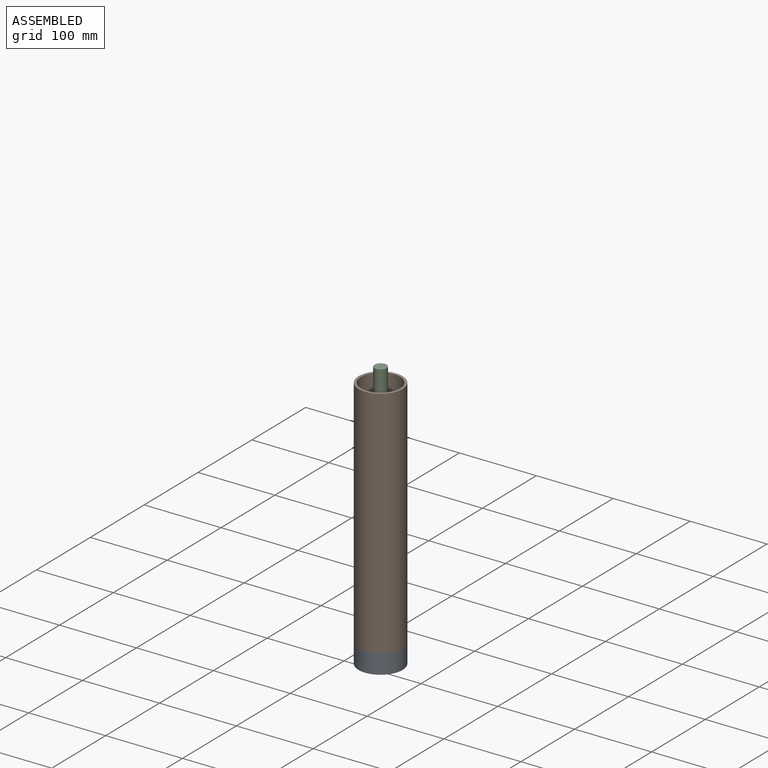
[diagram: assembled view]
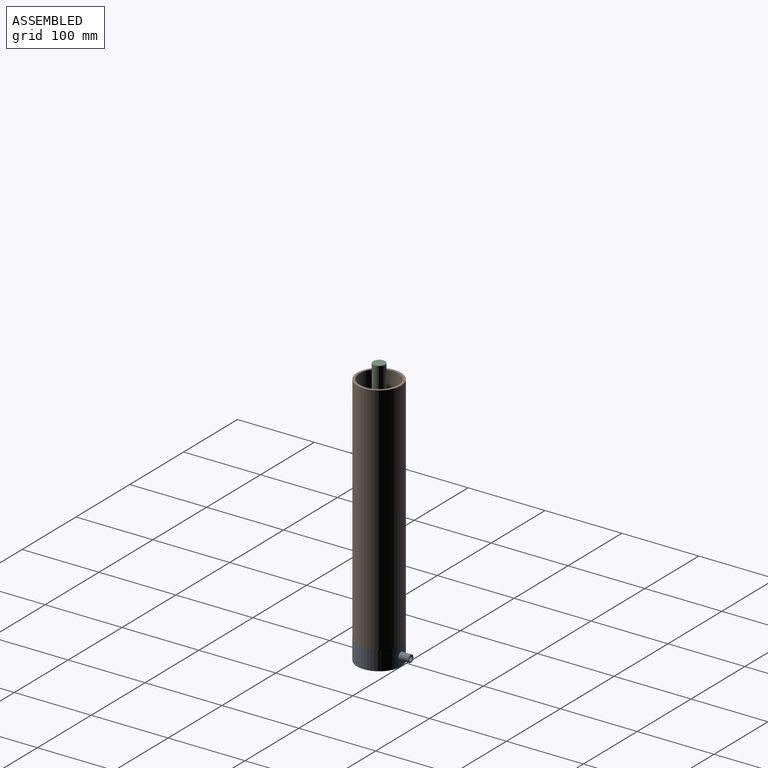
[diagram: assembled view, second angle]
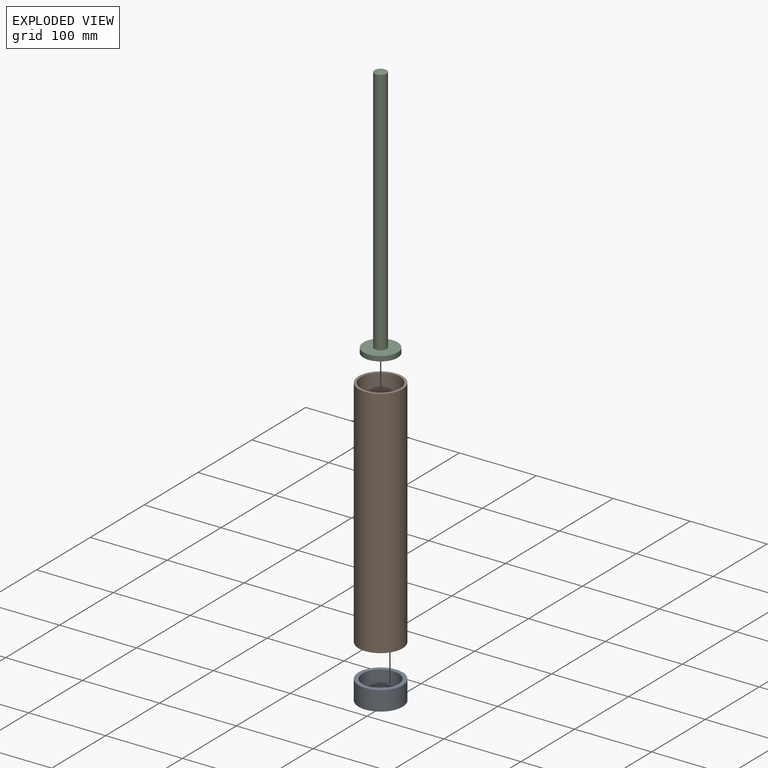
[diagram: exploded view]
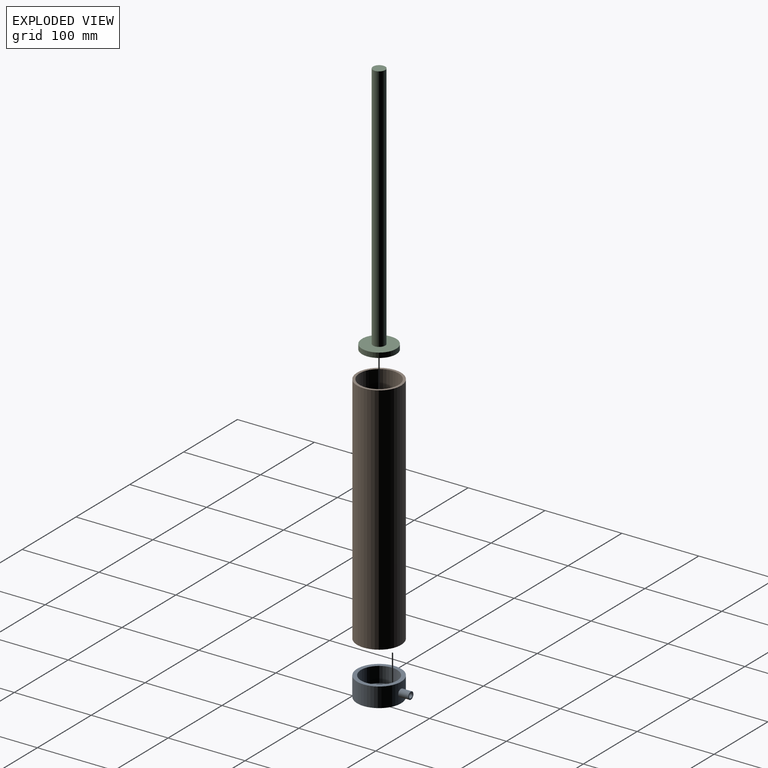
[diagram: exploded view, second angle]
ASSEMBLY  parts=3 mates=2
PART A: 9 faces, bbox 57.2x69.9x25.4 mm
  f0: cylinder r=28.57mm len=57.15mm, axis (0,0,1), area 4488.9mm2, adj f1,f2,f6
  f1: plane 57.15x57.15mm, normal (0,0,-1), area 2565.2mm2, adj f0
  f2: plane 57.15x57.15mm, normal (0,0,1), area 831mm2, adj f0,f3
  f3: cylinder r=23.49mm len=46.99mm, axis (0,0,1), area 2999.7mm2, adj f2,f4
  f4: plane 46.99x46.99mm, normal (0,0,1), area 1734.2mm2, adj f3
  f5: cylinder r=3.17mm len=12.88mm, axis (0,1,0), area 255.1mm2, adj f7,f8
  f6: cylinder r=4.76mm len=13.1mm, axis (0,1,0), area 386mm2, adj f0,f7
  f7: plane 9.53x9.53mm, normal (0,1,0), area 39.6mm2, adj f5,f6
  f8: cylinder r=28.57mm len=6.35mm, axis (0,0,1), area 31.7mm2, adj f5
PART B: 4 faces, bbox 57.2x57.2x304.8 mm
  f0: cylinder r=25.4mm len=304.8mm, axis (0,0,-1), area 48643.9mm2, adj f2,f3
  f1: cylinder r=28.57mm len=304.8mm, axis (0,0,-1), area 54724.4mm2, adj f2,f3
  f2: plane 57.15x57.15mm, normal (0,0,1), area 538.4mm2, adj f0,f1
  f3: plane 57.15x57.15mm, normal (0,0,-1), area 538.4mm2, adj f0,f1
PART C: 5 faces, bbox 44.5x44.5x330.2 mm
  f0: cylinder r=7.94mm len=323.85mm, axis (0,0,-1), area 16151.3mm2, adj f1,f3
  f1: plane 15.88x15.88mm, normal (0,0,1), area 197.9mm2, adj f0
  f2: cylinder r=22.23mm len=44.45mm, axis (0,0,-1), area 886.7mm2, adj f3,f4
  f3: plane 44.45x44.45mm, normal (0,0,1), area 1353.9mm2, adj f0,f2
  f4: plane 44.45x44.45mm, normal (0,0,-1), area 1551.8mm2, adj f2
PLACE A t=(95.63,-68.63,46.51)mm
PLACE B t=(95.63,-68.63,46.51)mm
PLACE C t=(95.63,-68.63,-112.24)mm
MATE fastened B.f1 <-> A.f0  axis (0,0,-1) through (95.63,-68.63,-105.89)mm
MATE cylindrical C.f2 <-> A.f0  axis (0,0,1) through (95.63,-68.63,-105.89)mm
